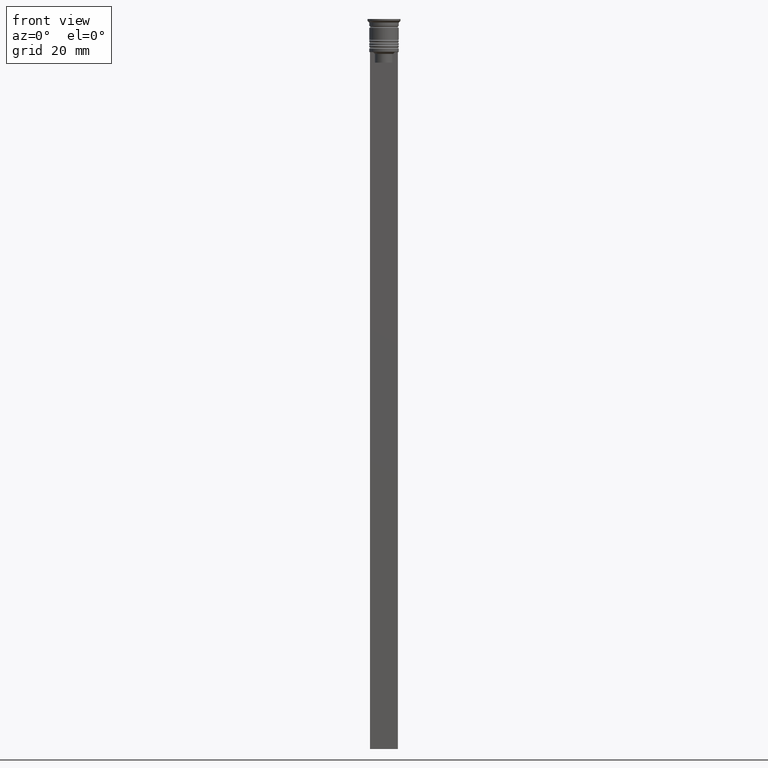
[diagram: clean part render]
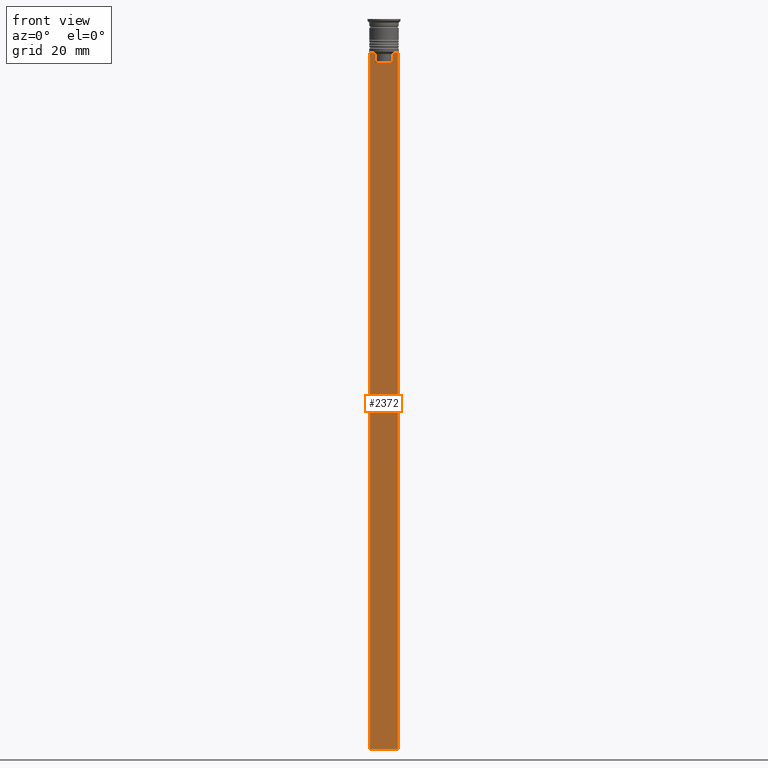
[diagram: same view with one face highlighted and labeled with its STEP entity id]
A machine part, front view. The second image highlights one B-rep face of the part: STEP entity #2372.
In plain terms, the highlighted planar face has unit normal (0, -1, -0).
Its self-contained STEP definition (entity closure, byte-faithful):
#36 = EDGE_CURVE ( 'NONE', #200, #1212, #2025, .T. ) ;
#47 = EDGE_CURVE ( 'NONE', #105, #190, #1100, .T. ) ;
#50 = ORIENTED_EDGE ( 'NONE', *, *, #280, .T. ) ;
#64 = AXIS2_PLACEMENT_3D ( 'NONE', #687, #504, #1061 ) ;
#67 = LINE ( 'NONE', #2057, #666 ) ;
#105 = VERTEX_POINT ( 'NONE', #767 ) ;
#190 = VERTEX_POINT ( 'NONE', #607 ) ;
#200 = VERTEX_POINT ( 'NONE', #1353 ) ;
#203 = VERTEX_POINT ( 'NONE', #1364 ) ;
#243 = CARTESIAN_POINT ( 'NONE',  ( -2.771866350855961336, -0.5000000000000004441, -9.833580160334840059 ) ) ;
#256 = ORIENTED_EDGE ( 'NONE', *, *, #36, .F. ) ;
#269 = EDGE_LOOP ( 'NONE', ( #2167, #817, #50, #1891, #1735, #256, #755, #1333, #2123, #599 ) ) ;
#280 = EDGE_CURVE ( 'NONE', #1686, #1531, #676, .T. ) ;
#294 = EDGE_CURVE ( 'NONE', #1059, #1531, #2154, .T. ) ;
#377 = EDGE_CURVE ( 'NONE', #203, #1459, #832, .T. ) ;
#409 = CARTESIAN_POINT ( 'NONE',  ( 0.000000000000000000, -0.5000000000000004441, -12.50000000000000000 ) ) ;
#446 = VECTOR ( 'NONE', #1205, 1000.000000000000000 ) ;
#461 = CARTESIAN_POINT ( 'NONE',  ( -3.999999999999994671, -0.5000000000000004441, -1.437742251701450202 ) ) ;
#504 = DIRECTION ( 'NONE',  ( 0.000000000000000000, -1.000000000000000000, -0.000000000000000000 ) ) ;
#523 = VECTOR ( 'NONE', #663, 1000.000000000000000 ) ;
#541 = EDGE_CURVE ( 'NONE', #190, #203, #554, .T. ) ;
#554 = LINE ( 'NONE', #409, #1650 ) ;
#568 = VECTOR ( 'NONE', #1597, 1000.000000000000000 ) ;
#599 = ORIENTED_EDGE ( 'NONE', *, *, #47, .F. ) ;
#604 = LINE ( 'NONE', #1158, #822 ) ;
#607 = CARTESIAN_POINT ( 'NONE',  ( -2.602402735934616906, -0.5000000000000004441, -12.50000000000000000 ) ) ;
#663 = DIRECTION ( 'NONE',  ( 0.000000000000000000, 0.000000000000000000, -1.000000000000000000 ) ) ;
#666 = VECTOR ( 'NONE', #1168, 1000.000000000000000 ) ;
#676 = LINE ( 'NONE', #461, #523 ) ;
#677 = VECTOR ( 'NONE', #1649, 1000.000000000000000 ) ;
#687 = CARTESIAN_POINT ( 'NONE',  ( 4.000000000000005329, -0.5000000000000004441, -1.437742251701450202 ) ) ;
#755 = ORIENTED_EDGE ( 'NONE', *, *, #774, .F. ) ;
#767 = CARTESIAN_POINT ( 'NONE',  ( -2.602402735934616906, -0.5000000000000004441, -10.00000000000000178 ) ) ;
#774 = EDGE_CURVE ( 'NONE', #1459, #200, #2314, .T. ) ;
#784 = B_SPLINE_CURVE_WITH_KNOTS ( 'NONE', 3,
 ( #2284, #2259, #243, #1683 ),
 .UNSPECIFIED., .F., .F.,
 ( 4, 4 ),
 ( 0.005378271293598281544, 0.006090816219556000749 ),
 .UNSPECIFIED. ) ;
#812 = CARTESIAN_POINT ( 'NONE',  ( 4.000000000000005329, -0.5000000000000004441, -209.5000000000000284 ) ) ;
#817 = ORIENTED_EDGE ( 'NONE', *, *, #1703, .F. ) ;
#822 = VECTOR ( 'NONE', #1548, 1000.000000000000000 ) ;
#832 = LINE ( 'NONE', #1217, #568 ) ;
#907 = CARTESIAN_POINT ( 'NONE',  ( -3.999999999999994671, -0.5000000000000004441, -209.5000000000000284 ) ) ;
#909 = CARTESIAN_POINT ( 'NONE',  ( 4.000000000000005329, -0.5000000000000004441, -9.500000000000000000 ) ) ;
#932 = CARTESIAN_POINT ( 'NONE',  ( 4.000000000000005329, -0.5000000000000004441, -9.500000000000000000 ) ) ;
#1049 = FACE_OUTER_BOUND ( 'NONE', #269, .T. ) ;
#1059 = VERTEX_POINT ( 'NONE', #1553 ) ;
#1061 = DIRECTION ( 'NONE',  ( 0.000000000000000000, 0.000000000000000000, -1.000000000000000000 ) ) ;
#1100 = LINE ( 'NONE', #1838, #1997 ) ;
#1158 = CARTESIAN_POINT ( 'NONE',  ( 4.000000000000005329, -0.5000000000000004441, -1.437742251701450202 ) ) ;
#1168 = DIRECTION ( 'NONE',  ( 1.000000000000000000, 0.000000000000000000, 0.000000000000000000 ) ) ;
#1205 = DIRECTION ( 'NONE',  ( -1.000000000000000000, 0.000000000000000000, 0.000000000000000000 ) ) ;
#1212 = VERTEX_POINT ( 'NONE', #932 ) ;
#1216 = CARTESIAN_POINT ( 'NONE',  ( 2.602402735934616906, -0.5000000000000004441, -10.00000000000000178 ) ) ;
#1217 = CARTESIAN_POINT ( 'NONE',  ( 2.602402735934616906, -0.5000000000000004441, 0.000000000000000000 ) ) ;
#1223 = CARTESIAN_POINT ( 'NONE',  ( 2.602402735934616906, -0.5000000000000004441, -10.00000000000000178 ) ) ;
#1246 = EDGE_CURVE ( 'NONE', #1357, #105, #784, .T. ) ;
#1271 = CARTESIAN_POINT ( 'NONE',  ( 2.771864055700302476, -0.5000000000000004441, -9.833582414266679450 ) ) ;
#1303 = DIRECTION ( 'NONE',  ( 1.000000000000000000, 0.000000000000000000, 0.000000000000000000 ) ) ;
#1333 = ORIENTED_EDGE ( 'NONE', *, *, #377, .F. ) ;
#1353 = CARTESIAN_POINT ( 'NONE',  ( 3.110064308016796453, -0.5000000000000004441, -9.500000000000000000 ) ) ;
#1357 = VERTEX_POINT ( 'NONE', #2094 ) ;
#1364 = CARTESIAN_POINT ( 'NONE',  ( 2.602402735934616906, -0.5000000000000004441, -12.50000000000000000 ) ) ;
#1459 = VERTEX_POINT ( 'NONE', #1216 ) ;
#1531 = VERTEX_POINT ( 'NONE', #907 ) ;
#1548 = DIRECTION ( 'NONE',  ( 0.000000000000000000, 0.000000000000000000, -1.000000000000000000 ) ) ;
#1553 = CARTESIAN_POINT ( 'NONE',  ( 4.000000000000005329, -0.5000000000000004441, -209.5000000000000284 ) ) ;
#1597 = DIRECTION ( 'NONE',  ( -0.000000000000000000, -0.000000000000000000, 1.000000000000000000 ) ) ;
#1609 = PLANE ( 'NONE',  #64 ) ;
#1649 = DIRECTION ( 'NONE',  ( 1.000000000000000000, 0.000000000000000000, 0.000000000000000000 ) ) ;
#1650 = VECTOR ( 'NONE', #1303, 1000.000000000000000 ) ;
#1661 = DIRECTION ( 'NONE',  ( 0.000000000000000000, 0.000000000000000000, -1.000000000000000000 ) ) ;
#1683 = CARTESIAN_POINT ( 'NONE',  ( -2.602402735934616906, -0.5000000000000004441, -10.00000000000000178 ) ) ;
#1686 = VERTEX_POINT ( 'NONE', #2081 ) ;
#1703 = EDGE_CURVE ( 'NONE', #1686, #1357, #67, .T. ) ;
#1735 = ORIENTED_EDGE ( 'NONE', *, *, #1771, .F. ) ;
#1771 = EDGE_CURVE ( 'NONE', #1212, #1059, #604, .T. ) ;
#1830 = CARTESIAN_POINT ( 'NONE',  ( 2.941045828809988549, -0.5000000000000004441, -9.666875663357577864 ) ) ;
#1838 = CARTESIAN_POINT ( 'NONE',  ( -2.602402735934616906, -0.5000000000000004441, 0.000000000000000000 ) ) ;
#1891 = ORIENTED_EDGE ( 'NONE', *, *, #294, .F. ) ;
#1997 = VECTOR ( 'NONE', #1661, 1000.000000000000000 ) ;
#2025 = LINE ( 'NONE', #909, #677 ) ;
#2057 = CARTESIAN_POINT ( 'NONE',  ( 4.000000000000005329, -0.5000000000000004441, -9.500000000000000000 ) ) ;
#2081 = CARTESIAN_POINT ( 'NONE',  ( -3.999999999999994671, -0.5000000000000004441, -9.500000000000000000 ) ) ;
#2094 = CARTESIAN_POINT ( 'NONE',  ( -3.110064308016796453, -0.5000000000000004441, -9.500000000000000000 ) ) ;
#2123 = ORIENTED_EDGE ( 'NONE', *, *, #541, .F. ) ;
#2154 = LINE ( 'NONE', #812, #446 ) ;
#2167 = ORIENTED_EDGE ( 'NONE', *, *, #1246, .F. ) ;
#2183 = CARTESIAN_POINT ( 'NONE',  ( 3.110064308016796453, -0.5000000000000004441, -9.500000000000000000 ) ) ;
#2259 = CARTESIAN_POINT ( 'NONE',  ( -2.941047749529104749, -0.5000000000000004441, -9.666873766989334982 ) ) ;
#2284 = CARTESIAN_POINT ( 'NONE',  ( -3.110064308016796453, -0.5000000000000004441, -9.500000000000000000 ) ) ;
#2314 = B_SPLINE_CURVE_WITH_KNOTS ( 'NONE', 3,
 ( #1223, #1271, #1830, #2183 ),
 .UNSPECIFIED., .F., .F.,
 ( 4, 4 ),
 ( 0.01295151922336847811, 0.01367164596165162602 ),
 .UNSPECIFIED. ) ;
#2372 = ADVANCED_FACE ( 'NONE', ( #1049 ), #1609, .T. ) ;